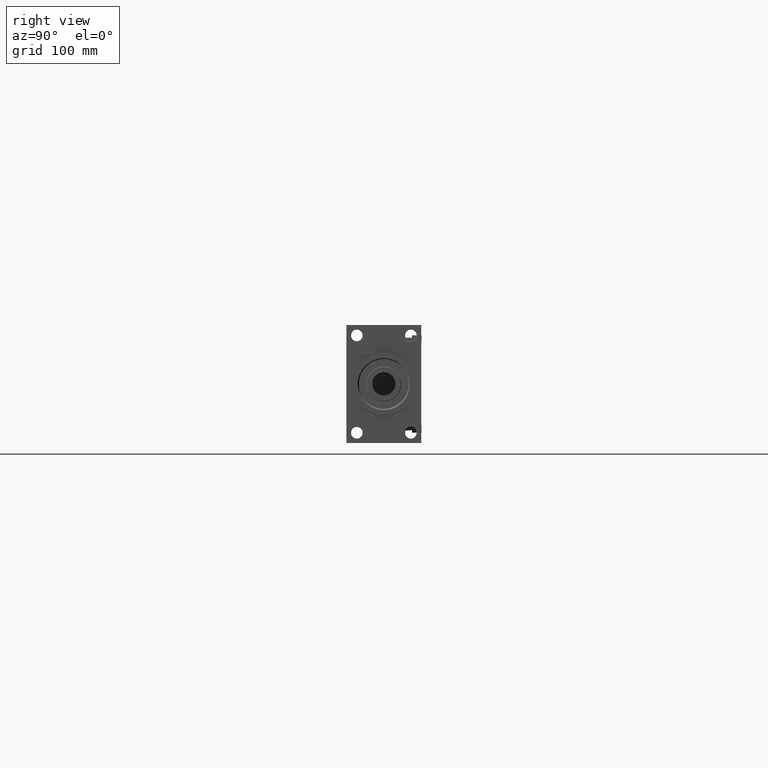
[diagram: clean part render]
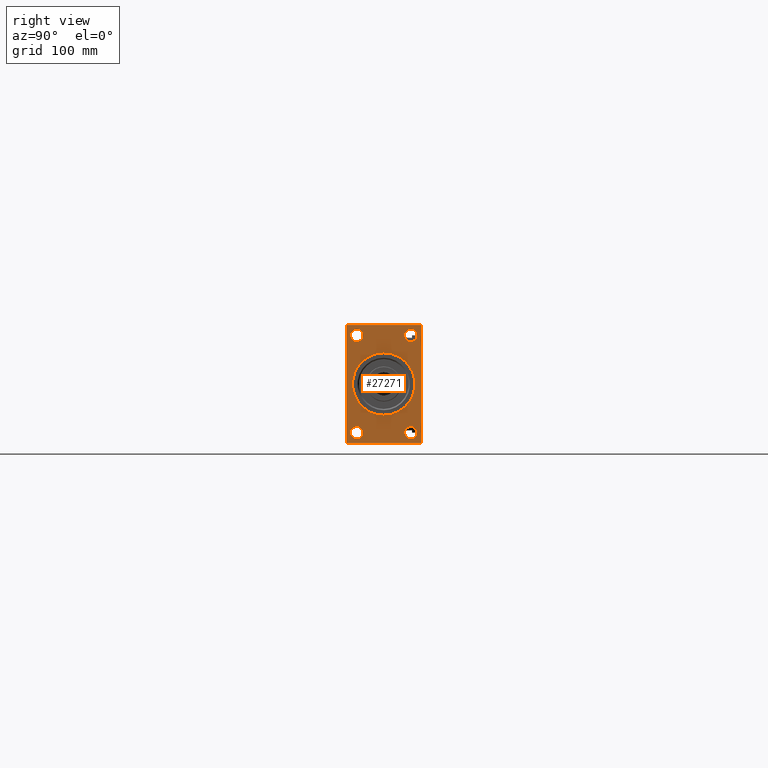
[diagram: same view with one face highlighted and labeled with its STEP entity id]
A machine part, right view. The second image highlights one B-rep face of the part: STEP entity #27271.
In plain terms, the highlighted planar face has unit normal (-1, 0, 0).
Its self-contained STEP definition (entity closure, byte-faithful):
#268 = EDGE_CURVE ( 'NONE', #37507, #33783, #42070, .T. ) ;
#288 = CARTESIAN_POINT ( 'NONE',  ( 820.0000000000001137, -44.99999999999997158, -70.50000000000005684 ) ) ;
#1121 = AXIS2_PLACEMENT_3D ( 'NONE', #30677, #34865, #10742 ) ;
#1382 = CARTESIAN_POINT ( 'NONE',  ( 820.0000000000001137, -32.50000000000000000, 58.50000000000000711 ) ) ;
#1425 = DIRECTION ( 'NONE',  ( 0.000000000000000000, 0.000000000000000000, -1.000000000000000000 ) ) ;
#1747 = EDGE_CURVE ( 'NONE', #4511, #37392, #15017, .T. ) ;
#3468 = VERTEX_POINT ( 'NONE', #7358 ) ;
#3604 = ORIENTED_EDGE ( 'NONE', *, *, #1747, .T. ) ;
#3772 = CIRCLE ( 'NONE', #40624, 7.500000000000047962 ) ;
#3916 = DIRECTION ( 'NONE',  ( 0.000000000000000000, 0.000000000000000000, 1.000000000000000000 ) ) ;
#4360 = EDGE_LOOP ( 'NONE', ( #17384, #28221 ) ) ;
#4511 = VERTEX_POINT ( 'NONE', #17287 ) ;
#5130 = ORIENTED_EDGE ( 'NONE', *, *, #46429, .T. ) ;
#5285 = CARTESIAN_POINT ( 'NONE',  ( 820.0000000000001137, -32.50000000000000000, -66.00000000000004263 ) ) ;
#5952 = AXIS2_PLACEMENT_3D ( 'NONE', #50068, #33780, #46638 ) ;
#6059 = VERTEX_POINT ( 'NONE', #31896 ) ;
#6373 = CARTESIAN_POINT ( 'NONE',  ( 820.0000000000001137, 45.00000000000001421, -70.49999999999991473 ) ) ;
#6630 = EDGE_CURVE ( 'NONE', #47862, #35006, #10298, .T. ) ;
#6688 = AXIS2_PLACEMENT_3D ( 'NONE', #7430, #43373, #34974 ) ;
#6951 = CARTESIAN_POINT ( 'NONE',  ( 820.0000000000001137, 45.00000000000002132, 70.50000000000004263 ) ) ;
#7032 = FACE_BOUND ( 'NONE', #39986, .T. ) ;
#7358 = CARTESIAN_POINT ( 'NONE',  ( 820.0000000000001137, 0.000000000000000000, 37.50000000000000711 ) ) ;
#7430 = CARTESIAN_POINT ( 'NONE',  ( 820.0000000000001137, 32.50000000000000711, -58.50000000000000000 ) ) ;
#7843 = DIRECTION ( 'NONE',  ( -1.000000000000000000, 0.000000000000000000, -0.000000000000000000 ) ) ;
#8009 = VERTEX_POINT ( 'NONE', #288 ) ;
#8304 = LINE ( 'NONE', #27961, #17974 ) ;
#8376 = CARTESIAN_POINT ( 'NONE',  ( 820.0000000000001137, 4.592425496802575156E-15, -37.50000000000000711 ) ) ;
#8830 = ORIENTED_EDGE ( 'NONE', *, *, #32463, .T. ) ;
#9165 = EDGE_CURVE ( 'NONE', #6059, #9691, #23706, .T. ) ;
#9521 = DIRECTION ( 'NONE',  ( -0.000000000000000000, 0.7071067811865376918, 0.7071067811865573427 ) ) ;
#9691 = VERTEX_POINT ( 'NONE', #5285 ) ;
#10054 = ORIENTED_EDGE ( 'NONE', *, *, #15119, .F. ) ;
#10261 = AXIS2_PLACEMENT_3D ( 'NONE', #39110, #47259, #10540 ) ;
#10298 = LINE ( 'NONE', #6373, #18570 ) ;
#10540 = DIRECTION ( 'NONE',  ( 0.000000000000000000, 0.000000000000000000, 1.000000000000000000 ) ) ;
#10742 = DIRECTION ( 'NONE',  ( 0.000000000000000000, 0.000000000000000000, 1.000000000000000000 ) ) ;
#10954 = FACE_BOUND ( 'NONE', #4360, .T. ) ;
#11465 = PLANE ( 'NONE',  #24835 ) ;
#11984 = CARTESIAN_POINT ( 'NONE',  ( 820.0000000000001137, 0.000000000000000000, 0.000000000000000000 ) ) ;
#12241 = EDGE_CURVE ( 'NONE', #25686, #47798, #34773, .T. ) ;
#12321 = VECTOR ( 'NONE', #12541, 999.9999999999998863 ) ;
#12380 = DIRECTION ( 'NONE',  ( -1.000000000000000000, 0.000000000000000000, -0.000000000000000000 ) ) ;
#12541 = DIRECTION ( 'NONE',  ( 0.000000000000000000, 0.7071067811865574537, -0.7071067811865376918 ) ) ;
#12990 = CIRCLE ( 'NONE', #40533, 7.500000000000047962 ) ;
#13816 = DIRECTION ( 'NONE',  ( -1.000000000000000000, 0.000000000000000000, -0.000000000000000000 ) ) ;
#13869 = CARTESIAN_POINT ( 'NONE',  ( 820.0000000000001137, -44.50000000000000711, 70.99999999999998579 ) ) ;
#14407 = ORIENTED_EDGE ( 'NONE', *, *, #12241, .T. ) ;
#14610 = ORIENTED_EDGE ( 'NONE', *, *, #29105, .T. ) ;
#14779 = EDGE_LOOP ( 'NONE', ( #18309, #14610, #32314, #28389, #10054, #26066, #27000, #8830 ) ) ;
#14831 = EDGE_CURVE ( 'NONE', #37392, #4511, #3772, .T. ) ;
#14878 = FACE_BOUND ( 'NONE', #39198, .T. ) ;
#15015 = ORIENTED_EDGE ( 'NONE', *, *, #14831, .T. ) ;
#15017 = CIRCLE ( 'NONE', #5952, 7.500000000000047962 ) ;
#15073 = AXIS2_PLACEMENT_3D ( 'NONE', #38801, #7843, #3916 ) ;
#15119 = EDGE_CURVE ( 'NONE', #18094, #35006, #8304, .T. ) ;
#15686 = LINE ( 'NONE', #24339, #12321 ) ;
#15839 = CARTESIAN_POINT ( 'NONE',  ( 820.0000000000001137, 32.50000000000000711, -66.00000000000005684 ) ) ;
#16883 = CARTESIAN_POINT ( 'NONE',  ( 820.0000000000001137, -44.99999999999997158, 70.99999999999998579 ) ) ;
#17197 = EDGE_CURVE ( 'NONE', #44447, #3468, #46578, .T. ) ;
#17287 = CARTESIAN_POINT ( 'NONE',  ( 820.0000000000001137, 32.50000000000000711, 66.00000000000005684 ) ) ;
#17384 = ORIENTED_EDGE ( 'NONE', *, *, #47997, .F. ) ;
#17974 = VECTOR ( 'NONE', #51848, 1000.000000000000000 ) ;
#18094 = VERTEX_POINT ( 'NONE', #6951 ) ;
#18309 = ORIENTED_EDGE ( 'NONE', *, *, #40840, .T. ) ;
#18506 = CARTESIAN_POINT ( 'NONE',  ( 820.0000000000001137, 0.000000000000000000, 0.000000000000000000 ) ) ;
#18570 = VECTOR ( 'NONE', #9521, 1000.000000000000114 ) ;
#18759 = DIRECTION ( 'NONE',  ( 0.000000000000000000, 0.000000000000000000, -1.000000000000000000 ) ) ;
#19065 = FACE_OUTER_BOUND ( 'NONE', #14779, .T. ) ;
#19149 = VECTOR ( 'NONE', #23124, 1000.000000000000000 ) ;
#19540 = CARTESIAN_POINT ( 'NONE',  ( 820.0000000000001137, -44.99999999999997158, 70.50000000000002842 ) ) ;
#20581 = CARTESIAN_POINT ( 'NONE',  ( 820.0000000000001137, -44.99999999999997158, 70.50000000000002842 ) ) ;
#22641 = CIRCLE ( 'NONE', #15073, 7.500000000000047962 ) ;
#23005 = FACE_BOUND ( 'NONE', #45206, .T. ) ;
#23124 = DIRECTION ( 'NONE',  ( 0.000000000000000000, -1.000000000000000000, -1.541976423090495633E-16 ) ) ;
#23392 = EDGE_CURVE ( 'NONE', #47862, #49775, #26566, .T. ) ;
#23436 = EDGE_LOOP ( 'NONE', ( #43809, #34277 ) ) ;
#23706 = CIRCLE ( 'NONE', #1121, 7.500000000000055067 ) ;
#24309 = DIRECTION ( 'NONE',  ( -1.000000000000000000, 0.000000000000000000, -0.000000000000000000 ) ) ;
#24339 = CARTESIAN_POINT ( 'NONE',  ( 820.0000000000001137, -44.50000000000002842, -71.00000000000000000 ) ) ;
#24730 = CARTESIAN_POINT ( 'NONE',  ( 820.0000000000001137, 32.50000000000000711, 50.99999999999996447 ) ) ;
#24835 = AXIS2_PLACEMENT_3D ( 'NONE', #11984, #24309, #36911 ) ;
#25483 = DIRECTION ( 'NONE',  ( -1.000000000000000000, 0.000000000000000000, -0.000000000000000000 ) ) ;
#25686 = VERTEX_POINT ( 'NONE', #15839 ) ;
#25758 = CARTESIAN_POINT ( 'NONE',  ( 820.0000000000001137, 44.50000000000007105, 71.00000000000000000 ) ) ;
#26066 = ORIENTED_EDGE ( 'NONE', *, *, #26436, .T. ) ;
#26436 = EDGE_CURVE ( 'NONE', #18094, #37507, #43677, .T. ) ;
#26564 = CARTESIAN_POINT ( 'NONE',  ( 820.0000000000001137, 45.00000000000002132, 71.00000000000000000 ) ) ;
#26566 = LINE ( 'NONE', #26822, #19149 ) ;
#26672 = CARTESIAN_POINT ( 'NONE',  ( 820.0000000000001137, 45.00000000000001421, -70.49999999999991473 ) ) ;
#26822 = CARTESIAN_POINT ( 'NONE',  ( 820.0000000000001137, 45.00000000000001421, -70.99999999999998579 ) ) ;
#27000 = ORIENTED_EDGE ( 'NONE', *, *, #268, .T. ) ;
#27271 = ADVANCED_FACE ( 'NONE', ( #34829, #7032, #23005, #14878, #10954, #19065 ), #11465, .F. ) ;
#27712 = CARTESIAN_POINT ( 'NONE',  ( 820.0000000000001137, -44.50000000000000000, -71.00000000000000000 ) ) ;
#27961 = CARTESIAN_POINT ( 'NONE',  ( 820.0000000000001137, 45.00000000000002132, 71.00000000000000000 ) ) ;
#28221 = ORIENTED_EDGE ( 'NONE', *, *, #17197, .F. ) ;
#28389 = ORIENTED_EDGE ( 'NONE', *, *, #6630, .T. ) ;
#28395 = DIRECTION ( 'NONE',  ( 0.000000000000000000, 0.000000000000000000, 1.000000000000000000 ) ) ;
#28893 = CARTESIAN_POINT ( 'NONE',  ( 820.0000000000001137, 0.000000000000000000, 0.000000000000000000 ) ) ;
#29105 = EDGE_CURVE ( 'NONE', #8009, #49775, #15686, .T. ) ;
#29615 = CIRCLE ( 'NONE', #46375, 37.50000000000000711 ) ;
#30269 = VECTOR ( 'NONE', #1425, 1000.000000000000000 ) ;
#30642 = AXIS2_PLACEMENT_3D ( 'NONE', #28893, #45408, #44906 ) ;
#30677 = CARTESIAN_POINT ( 'NONE',  ( 820.0000000000001137, -32.50000000000000000, -58.49999999999999289 ) ) ;
#30852 = DIRECTION ( 'NONE',  ( 1.000000000000000000, 0.000000000000000000, 0.000000000000000000 ) ) ;
#31082 = DIRECTION ( 'NONE',  ( 0.000000000000000000, -0.7071067811865474617, 0.7071067811865474617 ) ) ;
#31896 = CARTESIAN_POINT ( 'NONE',  ( 820.0000000000001137, -32.50000000000000000, -50.99999999999992895 ) ) ;
#32122 = CARTESIAN_POINT ( 'NONE',  ( 820.0000000000001137, 44.50000000000007105, 71.00000000000000000 ) ) ;
#32141 = LINE ( 'NONE', #20581, #33294 ) ;
#32314 = ORIENTED_EDGE ( 'NONE', *, *, #23392, .F. ) ;
#32463 = EDGE_CURVE ( 'NONE', #33783, #42630, #32141, .T. ) ;
#32890 = CIRCLE ( 'NONE', #10261, 7.500000000000055067 ) ;
#33294 = VECTOR ( 'NONE', #36070, 999.9999999999998863 ) ;
#33780 = DIRECTION ( 'NONE',  ( -1.000000000000000000, 0.000000000000000000, -0.000000000000000000 ) ) ;
#33783 = VERTEX_POINT ( 'NONE', #13869 ) ;
#34128 = VERTEX_POINT ( 'NONE', #51066 ) ;
#34277 = ORIENTED_EDGE ( 'NONE', *, *, #38759, .T. ) ;
#34424 = VERTEX_POINT ( 'NONE', #43837 ) ;
#34650 = AXIS2_PLACEMENT_3D ( 'NONE', #48353, #12380, #28395 ) ;
#34773 = CIRCLE ( 'NONE', #34650, 7.500000000000062172 ) ;
#34829 = FACE_BOUND ( 'NONE', #23436, .T. ) ;
#34865 = DIRECTION ( 'NONE',  ( -1.000000000000000000, 0.000000000000000000, -0.000000000000000000 ) ) ;
#34974 = DIRECTION ( 'NONE',  ( 0.000000000000000000, 0.000000000000000000, 1.000000000000000000 ) ) ;
#35006 = VERTEX_POINT ( 'NONE', #26672 ) ;
#36070 = DIRECTION ( 'NONE',  ( -0.000000000000000000, -0.7071067811865425767, -0.7071067811865525687 ) ) ;
#36347 = EDGE_CURVE ( 'NONE', #47798, #25686, #44369, .T. ) ;
#36911 = DIRECTION ( 'NONE',  ( -0.000000000000000000, 0.000000000000000000, 1.000000000000000000 ) ) ;
#36920 = CARTESIAN_POINT ( 'NONE',  ( 820.0000000000001137, 44.49999999999995737, -70.99999999999998579 ) ) ;
#37392 = VERTEX_POINT ( 'NONE', #24730 ) ;
#37507 = VERTEX_POINT ( 'NONE', #25758 ) ;
#37566 = DIRECTION ( 'NONE',  ( 0.000000000000000000, 0.000000000000000000, 1.000000000000000000 ) ) ;
#38759 = EDGE_CURVE ( 'NONE', #34128, #34424, #22641, .T. ) ;
#38801 = CARTESIAN_POINT ( 'NONE',  ( 820.0000000000001137, -32.50000000000000000, 58.50000000000000711 ) ) ;
#39061 = VECTOR ( 'NONE', #31082, 1000.000000000000114 ) ;
#39110 = CARTESIAN_POINT ( 'NONE',  ( 820.0000000000001137, -32.50000000000000000, -58.49999999999999289 ) ) ;
#39198 = EDGE_LOOP ( 'NONE', ( #15015, #3604 ) ) ;
#39296 = CARTESIAN_POINT ( 'NONE',  ( 820.0000000000001137, 32.50000000000000711, -50.99999999999993605 ) ) ;
#39986 = EDGE_LOOP ( 'NONE', ( #5130, #48700 ) ) ;
#40533 = AXIS2_PLACEMENT_3D ( 'NONE', #1382, #25483, #37566 ) ;
#40624 = AXIS2_PLACEMENT_3D ( 'NONE', #48762, #13816, #41903 ) ;
#40840 = EDGE_CURVE ( 'NONE', #42630, #8009, #46010, .T. ) ;
#41544 = DIRECTION ( 'NONE',  ( 0.000000000000000000, -1.000000000000000000, -1.541976423090495387E-16 ) ) ;
#41750 = ORIENTED_EDGE ( 'NONE', *, *, #36347, .T. ) ;
#41903 = DIRECTION ( 'NONE',  ( 0.000000000000000000, 0.000000000000000000, 1.000000000000000000 ) ) ;
#42070 = LINE ( 'NONE', #26564, #49703 ) ;
#42630 = VERTEX_POINT ( 'NONE', #19540 ) ;
#43373 = DIRECTION ( 'NONE',  ( -1.000000000000000000, 0.000000000000000000, -0.000000000000000000 ) ) ;
#43677 = LINE ( 'NONE', #32122, #39061 ) ;
#43809 = ORIENTED_EDGE ( 'NONE', *, *, #51513, .T. ) ;
#43837 = CARTESIAN_POINT ( 'NONE',  ( 820.0000000000001137, -32.50000000000000000, 50.99999999999996447 ) ) ;
#44369 = CIRCLE ( 'NONE', #6688, 7.500000000000062172 ) ;
#44447 = VERTEX_POINT ( 'NONE', #8376 ) ;
#44906 = DIRECTION ( 'NONE',  ( 0.000000000000000000, 0.000000000000000000, -1.000000000000000000 ) ) ;
#45206 = EDGE_LOOP ( 'NONE', ( #14407, #41750 ) ) ;
#45408 = DIRECTION ( 'NONE',  ( 1.000000000000000000, 0.000000000000000000, 0.000000000000000000 ) ) ;
#46010 = LINE ( 'NONE', #16883, #30269 ) ;
#46375 = AXIS2_PLACEMENT_3D ( 'NONE', #18506, #30852, #18759 ) ;
#46429 = EDGE_CURVE ( 'NONE', #9691, #6059, #32890, .T. ) ;
#46578 = CIRCLE ( 'NONE', #30642, 37.50000000000000711 ) ;
#46638 = DIRECTION ( 'NONE',  ( 0.000000000000000000, 0.000000000000000000, 1.000000000000000000 ) ) ;
#47259 = DIRECTION ( 'NONE',  ( -1.000000000000000000, 0.000000000000000000, -0.000000000000000000 ) ) ;
#47798 = VERTEX_POINT ( 'NONE', #39296 ) ;
#47862 = VERTEX_POINT ( 'NONE', #36920 ) ;
#47997 = EDGE_CURVE ( 'NONE', #3468, #44447, #29615, .T. ) ;
#48353 = CARTESIAN_POINT ( 'NONE',  ( 820.0000000000001137, 32.50000000000000711, -58.50000000000000000 ) ) ;
#48700 = ORIENTED_EDGE ( 'NONE', *, *, #9165, .T. ) ;
#48762 = CARTESIAN_POINT ( 'NONE',  ( 820.0000000000001137, 32.50000000000000711, 58.50000000000000711 ) ) ;
#49703 = VECTOR ( 'NONE', #41544, 1000.000000000000000 ) ;
#49775 = VERTEX_POINT ( 'NONE', #27712 ) ;
#50068 = CARTESIAN_POINT ( 'NONE',  ( 820.0000000000001137, 32.50000000000000711, 58.50000000000000711 ) ) ;
#51066 = CARTESIAN_POINT ( 'NONE',  ( 820.0000000000001137, -32.50000000000000000, 66.00000000000005684 ) ) ;
#51513 = EDGE_CURVE ( 'NONE', #34424, #34128, #12990, .T. ) ;
#51848 = DIRECTION ( 'NONE',  ( 0.000000000000000000, -4.886545002751570165E-17, -1.000000000000000000 ) ) ;